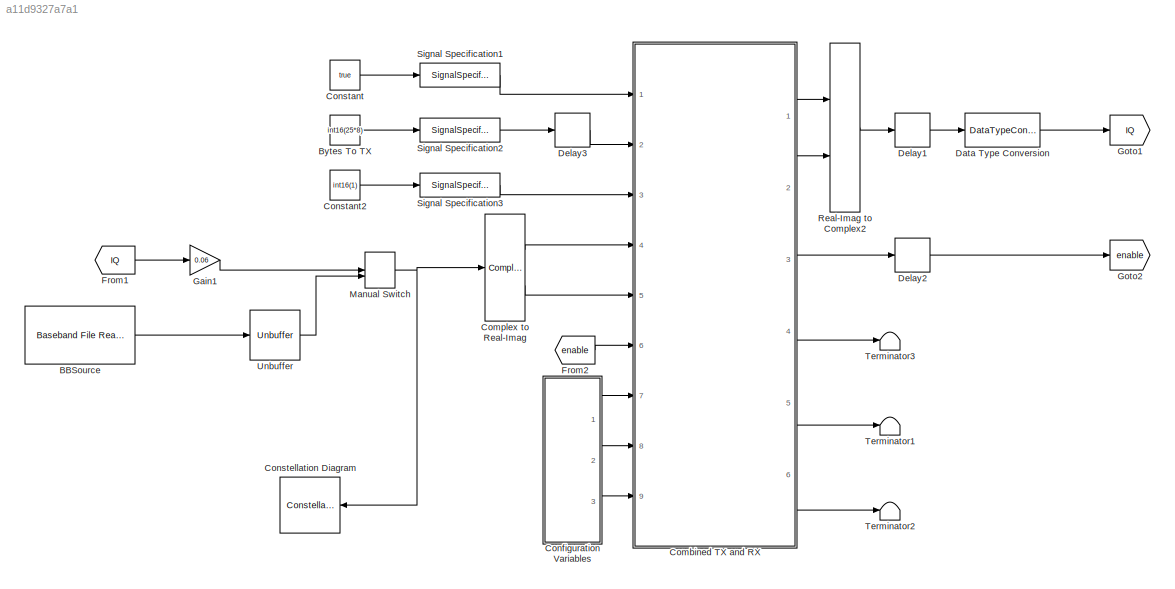
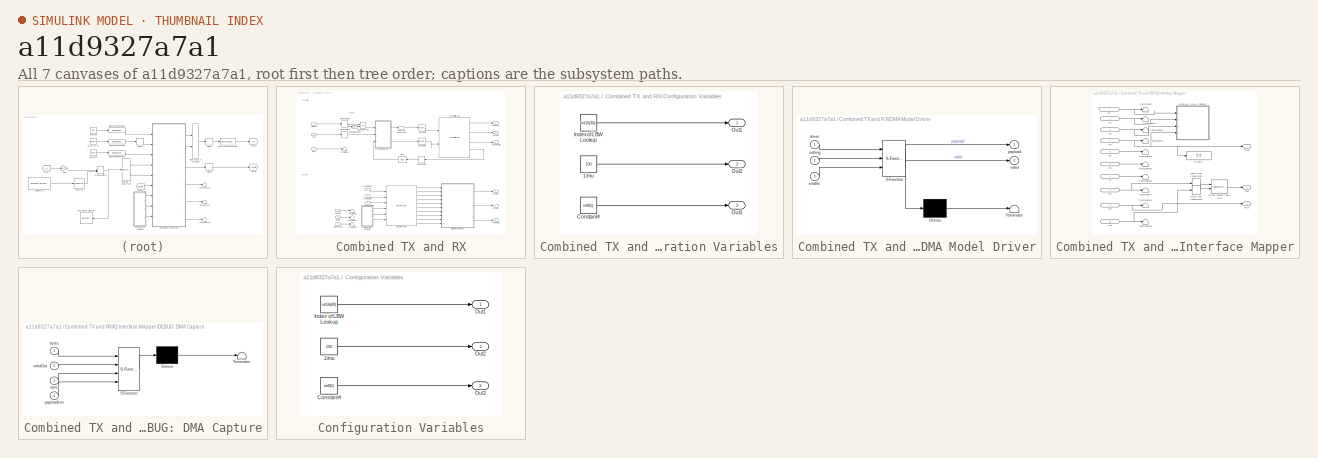
[diagram: thumbnail index - all 7 canvases of the model, root first then tree order]
MODEL slx_a11d9327a7a1
KIND model
CONFIG AbsTol = auto
CONFIG EnableMultiTasking = off
CONFIG FixedStep = auto
CONFIG InitFcn = modelSettings
CONFIG MaxStep = auto
CONFIG MinStep = auto
CONFIG RelTol = 1e-3
CONFIG SampleTimeConstraint = Unconstrained
CONFIG Solver = FixedStepDiscrete
CONFIG SolverName = FixedStepDiscrete
CONFIG StartTime = 0.0
CONFIG StopTime = 10.0
BLOCK [Reference] BBSource  REF=commsource2/Baseband File Reader
  Ports = [0, 1]
  SourceBlock = commsource2/Baseband File Reader
  SourceProductBaseCode = CM
  SourceProductName = Communications System Toolbox
  SourceType = Baseband File Reader
BLOCK [Constant] Bytes To TX
  SampleTime = -1
  Value = int16(25*8)
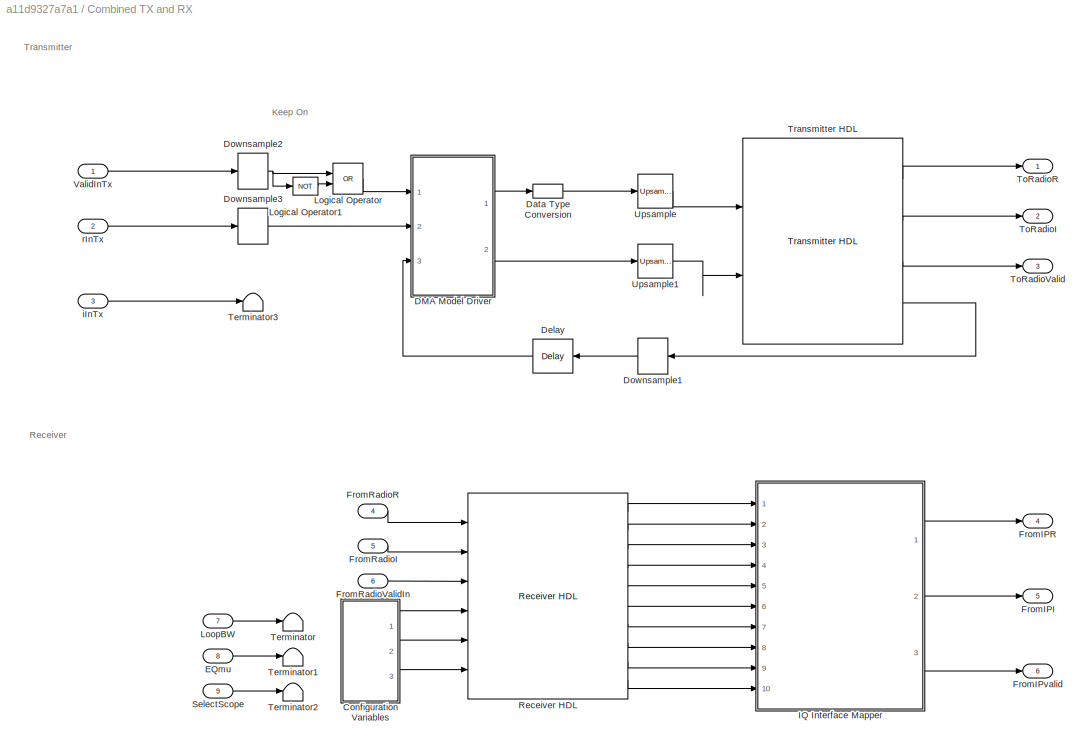
BLOCK [SubSystem] Combined TX and RX
  Ports = [9, 6]
  RequestExecContextInheritance = off
  TreatAsAtomicUnit = on
  Variant = off
BLOCK [SubSystem] Combined TX and RX/Configuration Variables
  Ports = [0, 3]
  RequestExecContextInheritance = off
  Variant = off
BLOCK [Constant] Combined TX and RX/Configuration Variables/1//mu
  OutDataTypeStr = int16
  SampleTime = -1
  Value = 100
BLOCK [Constant] Combined TX and RX/Configuration Variables/Constant4
  SampleTime = 1/RadioSampleRate
  Value = int8(1)
BLOCK [Constant] Combined TX and RX/Configuration Variables/Index of LBW Lookup
  SampleTime = 1/RadioSampleRate
  Value = int16(30)
BLOCK [Outport] Combined TX and RX/Configuration Variables/Out1
  IconDisplay = Port number
BLOCK [Outport] Combined TX and RX/Configuration Variables/Out2
  IconDisplay = Port number
  Port = 2
BLOCK [Outport] Combined TX and RX/Configuration Variables/Out3
  IconDisplay = Port number
  Port = 3
BLOCK [SubSystem] Combined TX and RX/DMA Model Driver
  ErrorFcn = Stateflow.Translate.translate
  PermitHierarchicalResolution = ExplicitOnly
  Ports = [3, 2]
  RequestExecContextInheritance = off
  SFBlockType = MATLAB Function
  TreatAsAtomicUnit = on
  Variant = off
BLOCK [Demux] Combined TX and RX/DMA Model Driver/ Demux 
  Outputs = 1
  Ports = [1, 1]
BLOCK [S-Function] Combined TX and RX/DMA Model Driver/ SFunction 
  EnableBusSupport = on
  FunctionName = sf_sfun
  PortCounts = [3 3]
  Ports = [3, 3]
  SFcnIsStateOwnerBlock = off
  SFunctionDeploymentMode = off
  Tag = Stateflow S-Function combinedTxRx 5
BLOCK [Terminator] Combined TX and RX/DMA Model Driver/ Terminator 
BLOCK [Inport] Combined TX and RX/DMA Model Driver/driver
  IconDisplay = Port number
BLOCK [Inport] Combined TX and RX/DMA Model Driver/enable
  IconDisplay = Port number
  Port = 3
BLOCK [Outport] Combined TX and RX/DMA Model Driver/payload
  IconDisplay = Port number
BLOCK [Inport] Combined TX and RX/DMA Model Driver/setting
  IconDisplay = Port number
  Port = 2
BLOCK [Outport] Combined TX and RX/DMA Model Driver/valid
  IconDisplay = Port number
  Port = 2
BLOCK [DataTypeConversion] Combined TX and RX/Data Type Conversion
  OutDataTypeStr = fixdt(0,64,0)
  RndMeth = Floor
  SaturateOnIntegerOverflow = off
BLOCK [Delay] Combined TX and RX/Delay
  DelayLength = 1
  InputPortMap = u0
  Ports = [1, 1]
BLOCK [DownSample] Combined TX and RX/Downsample1
  InputProcessing = Elements as channels (sample based)
  N = 4
  RateOptions = Allow multirate processing
BLOCK [DownSample] Combined TX and RX/Downsample2
  InputProcessing = Elements as channels (sample based)
  N = 4
  RateOptions = Allow multirate processing
BLOCK [DownSample] Combined TX and RX/Downsample3
  InputProcessing = Elements as channels (sample based)
  N = 4
  RateOptions = Allow multirate processing
BLOCK [Inport] Combined TX and RX/EQmu
  IconDisplay = Port number
  Port = 8
BLOCK [Outport] Combined TX and RX/FromIPI
  IconDisplay = Port number
  Port = 5
BLOCK [Outport] Combined TX and RX/FromIPR
  IconDisplay = Port number
  Port = 4
BLOCK [Outport] Combined TX and RX/FromIPvalid
  IconDisplay = Port number
  Port = 6
BLOCK [Inport] Combined TX and RX/FromRadioI
  IconDisplay = Port number
  Port = 5
  PortDimensions = 1
BLOCK [Inport] Combined TX and RX/FromRadioR
  IconDisplay = Port number
  Port = 4
  PortDimensions = 1
BLOCK [Inport] Combined TX and RX/FromRadioValidIn
  IconDisplay = Port number
  Port = 6
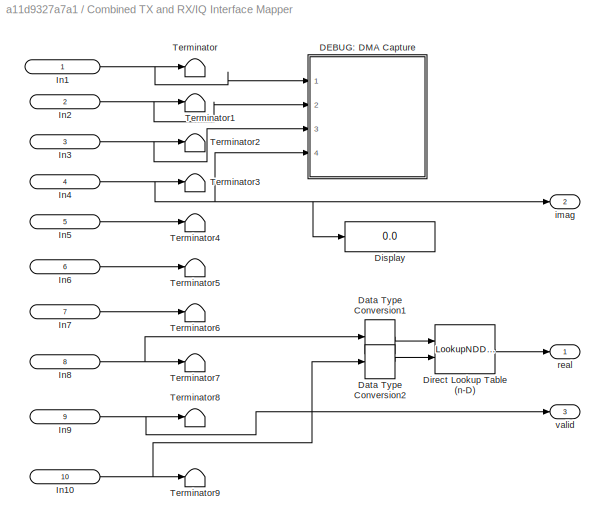
BLOCK [SubSystem] Combined TX and RX/IQ Interface Mapper
  Ports = [10, 3]
  RequestExecContextInheritance = off
  Variant = off
BLOCK [SubSystem] Combined TX and RX/IQ Interface Mapper/DEBUG: DMA Capture
  ErrorFcn = Stateflow.Translate.translate
  PermitHierarchicalResolution = ExplicitOnly
  Ports = [4]
  RequestExecContextInheritance = off
  SFBlockType = MATLAB Function
  TreatAsAtomicUnit = on
  Variant = off
BLOCK [Demux] Combined TX and RX/IQ Interface Mapper/DEBUG: DMA Capture/ Demux 
  Outputs = 1
  Ports = [1, 1]
BLOCK [S-Function] Combined TX and RX/IQ Interface Mapper/DEBUG: DMA Capture/ SFunction 
  EnableBusSupport = on
  FunctionName = sf_sfun
  PortCounts = [4 1]
  Ports = [4, 1]
  SFcnIsStateOwnerBlock = off
  SFunctionDeploymentMode = off
  Tag = Stateflow S-Function combinedTxRx 1
BLOCK [Terminator] Combined TX and RX/IQ Interface Mapper/DEBUG: DMA Capture/ Terminator 
BLOCK [Inport] Combined TX and RX/IQ Interface Mapper/DEBUG: DMA Capture/bytes
  IconDisplay = Port number
BLOCK [Inport] Combined TX and RX/IQ Interface Mapper/DEBUG: DMA Capture/payloadLen
  IconDisplay = Port number
  Port = 4
BLOCK [Inport] Combined TX and RX/IQ Interface Mapper/DEBUG: DMA Capture/sync
  IconDisplay = Port number
  Port = 3
BLOCK [Inport] Combined TX and RX/IQ Interface Mapper/DEBUG: DMA Capture/validOut
  IconDisplay = Port number
  Port = 2
BLOCK [DataTypeConversion] Combined TX and RX/IQ Interface Mapper/Data Type Conversion1
  OutDataTypeStr = int8
  RndMeth = Floor
  SaturateOnIntegerOverflow = off
BLOCK [DataTypeConversion] Combined TX and RX/IQ Interface Mapper/Data Type Conversion2
  OutDataTypeStr = int8
  RndMeth = Floor
  SaturateOnIntegerOverflow = off
BLOCK [LookupNDDirect] Combined TX and RX/IQ Interface Mapper/Direct Lookup Table (n-D)
  DiagnosticForOutOfRangeInput = Error
  Ports = [2, 1]
  Table = [1 2; 3 4]
  TableDataTypeStr = int16
BLOCK [Display] Combined TX and RX/IQ Interface Mapper/Display
  Decimation = 1
  Ports = [1]
BLOCK [Inport] Combined TX and RX/IQ Interface Mapper/In1
  IconDisplay = Port number and signal name
BLOCK [Inport] Combined TX and RX/IQ Interface Mapper/In10
  IconDisplay = Port number and signal name
  Port = 10
BLOCK [Inport] Combined TX and RX/IQ Interface Mapper/In2
  IconDisplay = Port number and signal name
  Port = 2
BLOCK [Inport] Combined TX and RX/IQ Interface Mapper/In3
  IconDisplay = Port number and signal name
  Port = 3
BLOCK [Inport] Combined TX and RX/IQ Interface Mapper/In4
  IconDisplay = Port number and signal name
  Port = 4
BLOCK [Inport] Combined TX and RX/IQ Interface Mapper/In5
  IconDisplay = Port number and signal name
  Port = 5
BLOCK [Inport] Combined TX and RX/IQ Interface Mapper/In6
  IconDisplay = Port number and signal name
  Port = 6
BLOCK [Inport] Combined TX and RX/IQ Interface Mapper/In7
  IconDisplay = Port number and signal name
  Port = 7
BLOCK [Inport] Combined TX and RX/IQ Interface Mapper/In8
  IconDisplay = Port number and signal name
  Port = 8
BLOCK [Inport] Combined TX and RX/IQ Interface Mapper/In9
  IconDisplay = Port number and signal name
  Port = 9
BLOCK [Terminator] Combined TX and RX/IQ Interface Mapper/Terminator
BLOCK [Terminator] Combined TX and RX/IQ Interface Mapper/Terminator1
BLOCK [Terminator] Combined TX and RX/IQ Interface Mapper/Terminator2
BLOCK [Terminator] Combined TX and RX/IQ Interface Mapper/Terminator3
BLOCK [Terminator] Combined TX and RX/IQ Interface Mapper/Terminator4
BLOCK [Terminator] Combined TX and RX/IQ Interface Mapper/Terminator5
BLOCK [Terminator] Combined TX and RX/IQ Interface Mapper/Terminator6
BLOCK [Terminator] Combined TX and RX/IQ Interface Mapper/Terminator7
BLOCK [Terminator] Combined TX and RX/IQ Interface Mapper/Terminator8
BLOCK [Terminator] Combined TX and RX/IQ Interface Mapper/Terminator9
BLOCK [Outport] Combined TX and RX/IQ Interface Mapper/imag
  IconDisplay = Port number
  Port = 2
BLOCK [Outport] Combined TX and RX/IQ Interface Mapper/real
  IconDisplay = Port number
BLOCK [Outport] Combined TX and RX/IQ Interface Mapper/valid
  IconDisplay = Port number
  Port = 3
BLOCK [Logic] Combined TX and RX/Logical Operator
  AllPortsSameDT = off
  Operator = OR
  OutDataTypeStr = boolean
  Ports = [2, 1]
BLOCK [Logic] Combined TX and RX/Logical Operator1
  AllPortsSameDT = off
  Operator = NOT
  OutDataTypeStr = boolean
  Ports = [1, 1]
BLOCK [Inport] Combined TX and RX/LoopBW
  IconDisplay = Port number
  Port = 7
BLOCK [Reference] Combined TX and RX/Receiver HDL  REF=RxTxFixedPointLibrary/Receiver HDL
  Ports = [6, 10]
  SourceBlock = RxTxFixedPointLibrary/Receiver HDL
BLOCK [Inport] Combined TX and RX/SelectScope
  IconDisplay = Port number
  Port = 9
BLOCK [Terminator] Combined TX and RX/Terminator
BLOCK [Terminator] Combined TX and RX/Terminator1
BLOCK [Terminator] Combined TX and RX/Terminator2
BLOCK [Terminator] Combined TX and RX/Terminator3
BLOCK [Outport] Combined TX and RX/ToRadioI
  IconDisplay = Port number
  Port = 2
BLOCK [Outport] Combined TX and RX/ToRadioR
  IconDisplay = Port number
BLOCK [Outport] Combined TX and RX/ToRadioValid
  IconDisplay = Port number
  Port = 3
BLOCK [Reference] Combined TX and RX/Transmitter HDL  REF=RxTxFixedPointLibrary/Transmitter HDL
  Ports = [2, 4]
  SourceBlock = RxTxFixedPointLibrary/Transmitter HDL
BLOCK [Reference] Combined TX and RX/Upsample  REF=dspsigops/Upsample
  Ports = [1, 1]
  SourceBlock = dspsigops/Upsample
  SourceProductBaseCode = DS
  SourceProductName = DSP System Toolbox
  SourceType = Upsample
  UserDataPersistent = on
BLOCK [Reference] Combined TX and RX/Upsample1  REF=dspsigops/Upsample
  Ports = [1, 1]
  SourceBlock = dspsigops/Upsample
  SourceProductBaseCode = DS
  SourceProductName = DSP System Toolbox
  SourceType = Upsample
  UserDataPersistent = on
BLOCK [Inport] Combined TX and RX/ValidInTx
  IconDisplay = Port number
BLOCK [Inport] Combined TX and RX/iInTx
  IconDisplay = Port number
  Port = 3
BLOCK [Inport] Combined TX and RX/rInTx
  IconDisplay = Port number
  Port = 2
BLOCK [ComplexToRealImag] Complex to Real-Imag
  Ports = [1, 2]
BLOCK [SubSystem] Configuration Variables
  Ports = [0, 3]
  RequestExecContextInheritance = off
  Variant = off
BLOCK [Constant] Configuration Variables/1//mu
  OutDataTypeStr = int16
  SampleTime = -1
  Value = 100
BLOCK [Constant] Configuration Variables/Constant4
  SampleTime = 1/RadioSampleRate
  Value = int8(1)
BLOCK [Constant] Configuration Variables/Index of LBW Lookup
  SampleTime = 1/RadioSampleRate
  Value = int16(40)
BLOCK [Outport] Configuration Variables/Out1
  IconDisplay = Port number
BLOCK [Outport] Configuration Variables/Out2
  IconDisplay = Port number
  Port = 2
BLOCK [Outport] Configuration Variables/Out3
  IconDisplay = Port number
  Port = 3
BLOCK [Constant] Constant
  SampleTime = -1
  Value = true
BLOCK [Constant] Constant2
  SampleTime = -1
  Value = int16(1)
BLOCK [ConstellationDiagram] Constellation Diagram
  Ports = [1]
  ScopeSpecificationString = comm.scopes.ConstellationDiagramBlockCfg('CurrentConfiguration', extmgr.ConfigurationSet(extmgr.Configuration('Core','General UI',true),extmgr.Configuration('Core','Source UI',true),extmgr.Configuration('Sources','WiredSimulink',true),extmgr.Configuration('Sources','File',false),extmgr.Configuration('Sources','Workspace',false),extmgr.Configuration('Sources','Streaming',false),extmgr.Configuration...<+2544ch>
BLOCK [DataTypeConversion] Data Type Conversion
  ConvertRealWorld = Stored Integer (SI)
  OutDataTypeStr = int16
  RndMeth = Floor
  SaturateOnIntegerOverflow = off
BLOCK [Delay] Delay1
  DelayLength = 1
  InputPortMap = u0
  Ports = [1, 1]
BLOCK [Delay] Delay2
  DelayLength = 1
  InputPortMap = u0
  Ports = [1, 1]
BLOCK [Delay] Delay3
  DelayLength = 2000
  InputPortMap = u0
  Ports = [1, 1]
BLOCK [From] From1
  GotoTag = IQ
BLOCK [From] From2
  GotoTag = enable
BLOCK [Gain] Gain1
  Gain = 0.06
  OutDataTypeStr = int16
  ParamDataTypeStr = Inherit: Inherit via internal rule
  SaturateOnIntegerOverflow = off
BLOCK [Goto] Goto1
  GotoTag = IQ
BLOCK [Goto] Goto2
  GotoTag = enable
BLOCK [ManualSwitch] Manual Switch
BLOCK [RealImagToComplex] Real-Imag to Complex2
  Ports = [2, 1]
BLOCK [SignalSpecification] Signal Specification1
  OutDataTypeStr = boolean
  SampleTime = 1/RadioSampleRate
BLOCK [SignalSpecification] Signal Specification2
  OutDataTypeStr = int16
  SampleTime = 1/RadioSampleRate
BLOCK [SignalSpecification] Signal Specification3
  OutDataTypeStr = int16
  SampleTime = 1/RadioSampleRate
BLOCK [Terminator] Terminator1
BLOCK [Terminator] Terminator2
BLOCK [Terminator] Terminator3
BLOCK [Unbuffer] Unbuffer
  Ports = [1, 1]
ANNOTATION Combined TX and RX: Keep On
ANNOTATION Combined TX and RX: Receiver
ANNOTATION Combined TX and RX: Transmitter
LINE BBSource:1 -> Unbuffer:1
LINE Bytes To TX:1 -> Signal Specification2:1
LINE Combined TX and RX/Configuration Variables/1//mu:1 -> Combined TX and RX/Configuration Variables/Out2:1
LINE Combined TX and RX/Configuration Variables/Constant4:1 -> Combined TX and RX/Configuration Variables/Out3:1
LINE Combined TX and RX/Configuration Variables/Index of LBW Lookup:1 -> Combined TX and RX/Configuration Variables/Out1:1
LINE Combined TX and RX/Configuration Variables:1 -> Combined TX and RX/Receiver HDL:4
LINE Combined TX and RX/Configuration Variables:2 -> Combined TX and RX/Receiver HDL:5
LINE Combined TX and RX/Configuration Variables:3 -> Combined TX and RX/Receiver HDL:6
LINE Combined TX and RX/DMA Model Driver:1 -> Combined TX and RX/Data Type Conversion:1
LINE Combined TX and RX/DMA Model Driver:2 -> Combined TX and RX/Upsample1:1
LINE Combined TX and RX/Data Type Conversion:1 -> Combined TX and RX/Upsample:1
LINE Combined TX and RX/Delay:1 -> Combined TX and RX/DMA Model Driver:3
LINE Combined TX and RX/Downsample1:1 -> Combined TX and RX/Delay:1
NET Combined TX and RX/Downsample2:1 -> Combined TX and RX/Logical Operator1:1, Combined TX and RX/Logical Operator:1
LINE Combined TX and RX/Downsample3:1 -> Combined TX and RX/DMA Model Driver:2
LINE Combined TX and RX/EQmu:1 -> Combined TX and RX/Terminator1:1
LINE Combined TX and RX/FromRadioI:1 -> Combined TX and RX/Receiver HDL:2
LINE Combined TX and RX/FromRadioR:1 -> Combined TX and RX/Receiver HDL:1
LINE Combined TX and RX/FromRadioValidIn:1 -> Combined TX and RX/Receiver HDL:3
LINE Combined TX and RX/IQ Interface Mapper/Data Type Conversion1:1 -> Combined TX and RX/IQ Interface Mapper/Direct Lookup Table (n-D):1
LINE Combined TX and RX/IQ Interface Mapper/Data Type Conversion2:1 -> Combined TX and RX/IQ Interface Mapper/Direct Lookup Table (n-D):2
LINE Combined TX and RX/IQ Interface Mapper/Direct Lookup Table (n-D):1 -> Combined TX and RX/IQ Interface Mapper/real:1
NET Combined TX and RX/IQ Interface Mapper/In10:1 -> Combined TX and RX/IQ Interface Mapper/Data Type Conversion2:1, Combined TX and RX/IQ Interface Mapper/Terminator9:1
NET Combined TX and RX/IQ Interface Mapper/In1:1 -> Combined TX and RX/IQ Interface Mapper/DEBUG: DMA Capture:1, Combined TX and RX/IQ Interface Mapper/Terminator:1
NET Combined TX and RX/IQ Interface Mapper/In2:1 -> Combined TX and RX/IQ Interface Mapper/DEBUG: DMA Capture:2, Combined TX and RX/IQ Interface Mapper/Terminator1:1
NET Combined TX and RX/IQ Interface Mapper/In3:1 -> Combined TX and RX/IQ Interface Mapper/DEBUG: DMA Capture:3, Combined TX and RX/IQ Interface Mapper/Terminator2:1
NET Combined TX and RX/IQ Interface Mapper/In4:1 -> Combined TX and RX/IQ Interface Mapper/DEBUG: DMA Capture:4, Combined TX and RX/IQ Interface Mapper/Display:1, Combined TX and RX/IQ Interface Mapper/Terminator3:1, Combined TX and RX/IQ Interface Mapper/imag:1
LINE Combined TX and RX/IQ Interface Mapper/In5:1 -> Combined TX and RX/IQ Interface Mapper/Terminator4:1
LINE Combined TX and RX/IQ Interface Mapper/In6:1 -> Combined TX and RX/IQ Interface Mapper/Terminator5:1
LINE Combined TX and RX/IQ Interface Mapper/In7:1 -> Combined TX and RX/IQ Interface Mapper/Terminator6:1
NET Combined TX and RX/IQ Interface Mapper/In8:1 -> Combined TX and RX/IQ Interface Mapper/Data Type Conversion1:1, Combined TX and RX/IQ Interface Mapper/Terminator7:1
NET Combined TX and RX/IQ Interface Mapper/In9:1 -> Combined TX and RX/IQ Interface Mapper/Terminator8:1, Combined TX and RX/IQ Interface Mapper/valid:1
LINE Combined TX and RX/IQ Interface Mapper:1 -> Combined TX and RX/FromIPR:1
LINE Combined TX and RX/IQ Interface Mapper:2 -> Combined TX and RX/FromIPI:1
LINE Combined TX and RX/IQ Interface Mapper:3 -> Combined TX and RX/FromIPvalid:1
LINE Combined TX and RX/Logical Operator1:1 -> Combined TX and RX/Logical Operator:2
LINE Combined TX and RX/Logical Operator:1 -> Combined TX and RX/DMA Model Driver:1
LINE Combined TX and RX/LoopBW:1 -> Combined TX and RX/Terminator:1
LINE Combined TX and RX/Receiver HDL:1 -> Combined TX and RX/IQ Interface Mapper:1
LINE Combined TX and RX/Receiver HDL:10 -> Combined TX and RX/IQ Interface Mapper:10
LINE Combined TX and RX/Receiver HDL:2 -> Combined TX and RX/IQ Interface Mapper:2
LINE Combined TX and RX/Receiver HDL:3 -> Combined TX and RX/IQ Interface Mapper:3
LINE Combined TX and RX/Receiver HDL:4 -> Combined TX and RX/IQ Interface Mapper:4
LINE Combined TX and RX/Receiver HDL:5 -> Combined TX and RX/IQ Interface Mapper:5
LINE Combined TX and RX/Receiver HDL:6 -> Combined TX and RX/IQ Interface Mapper:6
LINE Combined TX and RX/Receiver HDL:7 -> Combined TX and RX/IQ Interface Mapper:7
LINE Combined TX and RX/Receiver HDL:8 -> Combined TX and RX/IQ Interface Mapper:8
LINE Combined TX and RX/Receiver HDL:9 -> Combined TX and RX/IQ Interface Mapper:9
LINE Combined TX and RX/SelectScope:1 -> Combined TX and RX/Terminator2:1
LINE Combined TX and RX/Transmitter HDL:1 -> Combined TX and RX/ToRadioR:1
LINE Combined TX and RX/Transmitter HDL:2 -> Combined TX and RX/ToRadioI:1
LINE Combined TX and RX/Transmitter HDL:3 -> Combined TX and RX/ToRadioValid:1
LINE Combined TX and RX/Transmitter HDL:4 -> Combined TX and RX/Downsample1:1
LINE Combined TX and RX/Upsample1:1 -> Combined TX and RX/Transmitter HDL:2
LINE Combined TX and RX/Upsample:1 -> Combined TX and RX/Transmitter HDL:1
LINE Combined TX and RX/ValidInTx:1 -> Combined TX and RX/Downsample2:1
LINE Combined TX and RX/iInTx:1 -> Combined TX and RX/Terminator3:1
LINE Combined TX and RX/rInTx:1 -> Combined TX and RX/Downsample3:1
LINE Combined TX and RX:1 -> Real-Imag to Complex2:1
LINE Combined TX and RX:2 -> Real-Imag to Complex2:2
LINE Combined TX and RX:3 -> Delay2:1
LINE Combined TX and RX:4 -> Terminator3:1
LINE Combined TX and RX:5 -> Terminator1:1
LINE Combined TX and RX:6 -> Terminator2:1
LINE Complex to Real-Imag:1 -> Combined TX and RX:4
LINE Complex to Real-Imag:2 -> Combined TX and RX:5
LINE Configuration Variables/1//mu:1 -> Configuration Variables/Out2:1
LINE Configuration Variables/Constant4:1 -> Configuration Variables/Out3:1
LINE Configuration Variables/Index of LBW Lookup:1 -> Configuration Variables/Out1:1
LINE Configuration Variables:1 -> Combined TX and RX:7
LINE Configuration Variables:2 -> Combined TX and RX:8
LINE Configuration Variables:3 -> Combined TX and RX:9
LINE Constant2:1 -> Signal Specification3:1
LINE Constant:1 -> Signal Specification1:1
LINE Data Type Conversion:1 -> Goto1:1
LINE Delay1:1 -> Data Type Conversion:1
LINE Delay2:1 -> Goto2:1
LINE Delay3:1 -> Combined TX and RX:2
LINE From1:1 -> Gain1:1
LINE From2:1 -> Combined TX and RX:6
LINE Gain1:1 -> Manual Switch:1
NET Manual Switch:1 -> Complex to Real-Imag:1, Constellation Diagram:1
LINE Real-Imag to Complex2:1 -> Delay1:1
LINE Signal Specification1:1 -> Combined TX and RX:1
LINE Signal Specification2:1 -> Delay3:1
LINE Signal Specification3:1 -> Combined TX and RX:3
LINE Unbuffer:1 -> Manual Switch:2
note: NET lines group one-source signal fan-out (src -> all destinations, sorted); 1:1 wires keep LINE
CHART Combined TX and RX/IQ Interface Mapper/DEBUG: DMA Capture states=1 transitions=1
  STATE_LABEL 'eML_blk_kernel()'
  STATE_LABEL 'SCRIPT:\nfunction fcn(bytes, validOut, sync, payloadLen)\n\npersistent frameBuffer byteCounter fullPayloadBits\n\nbitsInPack = 64;\n\nif isempty(frameBuffer)\n    maxFrameBits = (2^16)*8;\n    frameBuffer = false(maxFrameBits,1);\n    byteCounter = 0;\n    fullPayloadBits = uint16(0);\nend\n\nif validOut\n    if sync\n        byteCounter = bitsInPack;\n        frameBuffer(1:byteCounter) = bitget(bytes,1:bitsInPack...<+390ch>'
CHART Combined TX and RX/DMA Model
Driver states=1 transitions=1
  STATE_LABEL 'eML_blk_kernel()'
  STATE_LABEL 'SCRIPT:\nfunction [payload,valid] = fcn(driver, setting, enable)\n%#codegen\n\npersistent indx mode pSize\n\nif isempty(indx)\n    pSize = fi(200,0,64,0); % Size in bytes (Must be multiple of 32 bits) cannot exceed uint16 max\n    indx = pSize;\n    mode = int8(0);\nend\n\n\nif enable && driver\n    valid = true;\n    switch mode\n        case int8(0) % Fresh packet start\n            if setting>0\n                ...<+1318ch>'
